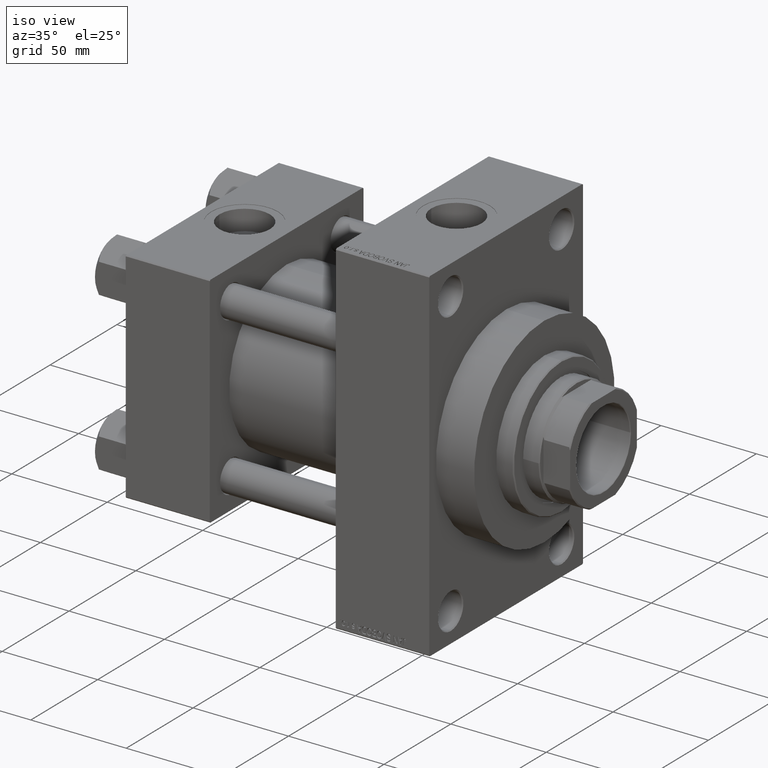
[diagram: clean part render]
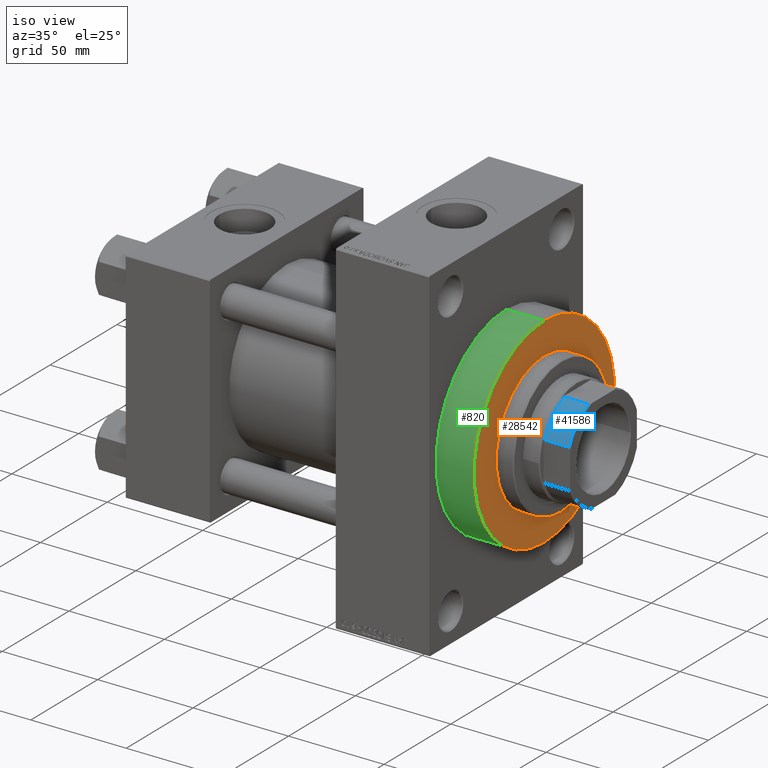
[diagram: same view with three faces highlighted in distinct colors, each labeled with its STEP entity id]
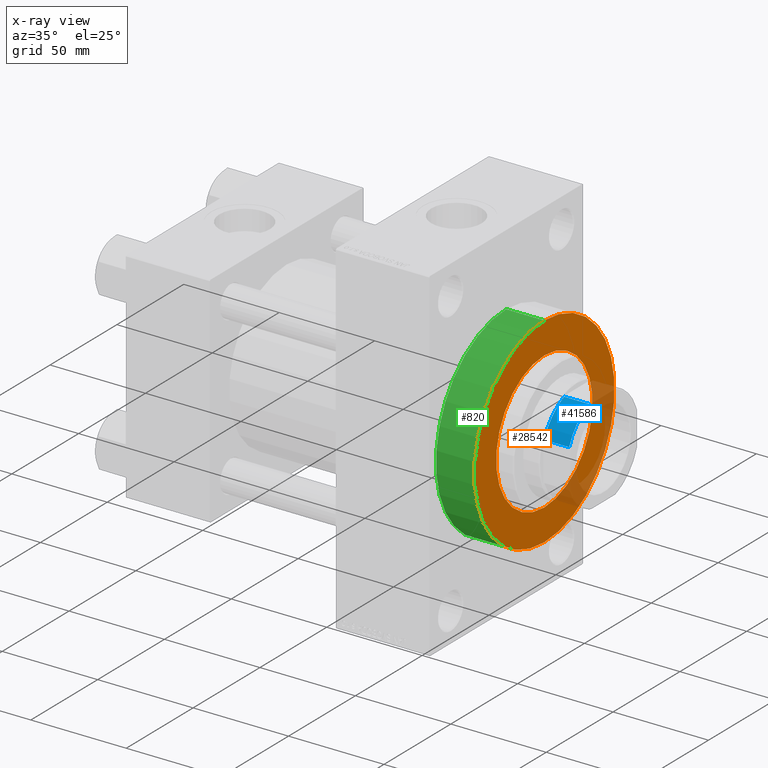
[diagram: x-ray of the same camera — body ghosted, the three highlighted faces saturated]
A machine part, iso view with three faces highlighted in distinct colors.
The next image is the same camera in x-ray (body ghosted, the three faces saturated) — at least one of them is partly hidden behind the body in this view.
Their STEP definitions:

[orange] entity #28542 — the highlighted planar face has unit normal (1, 0, 0).
#28 = CIRCLE ( 'NONE', #9287, 52.50000000000000000 ) ;
#251 = ORIENTED_EDGE ( 'NONE', *, *, #20173, .T. ) ;
#1074 = EDGE_LOOP ( 'NONE', ( #2925, #32901 ) ) ;
#1841 = CARTESIAN_POINT ( 'NONE',  ( 179.0000000000000000, 0.000000000000000000, 0.000000000000000000 ) ) ;
#2472 = CARTESIAN_POINT ( 'NONE',  ( 179.0000000000000000, 6.429395695523603956E-15, -52.50000000000000000 ) ) ;
#2503 = DIRECTION ( 'NONE',  ( 1.000000000000000000, 0.000000000000000000, 0.000000000000000000 ) ) ;
#2925 = ORIENTED_EDGE ( 'NONE', *, *, #42135, .F. ) ;
#3751 = CARTESIAN_POINT ( 'NONE',  ( 179.0000000000000000, 0.000000000000000000, 0.000000000000000000 ) ) ;
#6777 = EDGE_CURVE ( 'NONE', #33591, #23240, #35334, .T. ) ;
#8127 = DIRECTION ( 'NONE',  ( 0.000000000000000000, 0.000000000000000000, -1.000000000000000000 ) ) ;
#8806 = ORIENTED_EDGE ( 'NONE', *, *, #33356, .T. ) ;
#9287 = AXIS2_PLACEMENT_3D ( 'NONE', #22755, #2503, #45904 ) ;
#14816 = CIRCLE ( 'NONE', #21755, 36.00000000000000000 ) ;
#19880 = AXIS2_PLACEMENT_3D ( 'NONE', #3751, #44246, #25670 ) ;
#20173 = EDGE_CURVE ( 'NONE', #45961, #37296, #34922, .T. ) ;
#20682 = AXIS2_PLACEMENT_3D ( 'NONE', #1841, #45707, #35324 ) ;
#21755 = AXIS2_PLACEMENT_3D ( 'NONE', #29595, #29831, #8127 ) ;
#22755 = CARTESIAN_POINT ( 'NONE',  ( 179.0000000000000000, 0.000000000000000000, 0.000000000000000000 ) ) ;
#23136 = CARTESIAN_POINT ( 'NONE',  ( 179.0000000000000000, 0.000000000000000000, 52.50000000000000000 ) ) ;
#23240 = VERTEX_POINT ( 'NONE', #30875 ) ;
#25670 = DIRECTION ( 'NONE',  ( 0.000000000000000000, 0.000000000000000000, -1.000000000000000000 ) ) ;
#27114 = DIRECTION ( 'NONE',  ( 0.000000000000000000, 0.000000000000000000, -1.000000000000000000 ) ) ;
#28542 = ADVANCED_FACE ( 'NONE', ( #33406, #44003 ), #36782, .T. ) ;
#28741 = AXIS2_PLACEMENT_3D ( 'NONE', #46390, #31212, #27114 ) ;
#29595 = CARTESIAN_POINT ( 'NONE',  ( 179.0000000000000000, 0.000000000000000000, 0.000000000000000000 ) ) ;
#29831 = DIRECTION ( 'NONE',  ( 1.000000000000000000, 0.000000000000000000, 0.000000000000000000 ) ) ;
#30875 = CARTESIAN_POINT ( 'NONE',  ( 179.0000000000000000, 0.000000000000000000, -36.00000000000000000 ) ) ;
#31212 = DIRECTION ( 'NONE',  ( 1.000000000000000000, 0.000000000000000000, 0.000000000000000000 ) ) ;
#31478 = EDGE_LOOP ( 'NONE', ( #8806, #251 ) ) ;
#31848 = CARTESIAN_POINT ( 'NONE',  ( 179.0000000000000000, 4.408728476930470856E-15, 36.00000000000000000 ) ) ;
#32901 = ORIENTED_EDGE ( 'NONE', *, *, #6777, .F. ) ;
#33356 = EDGE_CURVE ( 'NONE', #37296, #45961, #28, .T. ) ;
#33406 = FACE_BOUND ( 'NONE', #1074, .T. ) ;
#33591 = VERTEX_POINT ( 'NONE', #31848 ) ;
#34922 = CIRCLE ( 'NONE', #28741, 52.50000000000000000 ) ;
#35324 = DIRECTION ( 'NONE',  ( 0.000000000000000000, 0.000000000000000000, -1.000000000000000000 ) ) ;
#35334 = CIRCLE ( 'NONE', #20682, 36.00000000000000000 ) ;
#36782 = PLANE ( 'NONE',  #19880 ) ;
#37296 = VERTEX_POINT ( 'NONE', #23136 ) ;
#42135 = EDGE_CURVE ( 'NONE', #23240, #33591, #14816, .T. ) ;
#44003 = FACE_OUTER_BOUND ( 'NONE', #31478, .T. ) ;
#44246 = DIRECTION ( 'NONE',  ( 1.000000000000000000, 0.000000000000000000, 0.000000000000000000 ) ) ;
#45707 = DIRECTION ( 'NONE',  ( 1.000000000000000000, 0.000000000000000000, 0.000000000000000000 ) ) ;
#45904 = DIRECTION ( 'NONE',  ( 0.000000000000000000, 0.000000000000000000, -1.000000000000000000 ) ) ;
#45961 = VERTEX_POINT ( 'NONE', #2472 ) ;
#46390 = CARTESIAN_POINT ( 'NONE',  ( 179.0000000000000000, 0.000000000000000000, 0.000000000000000000 ) ) ;

[blue] entity #41586 — the highlighted cylindrical surface (partial cylindrical patch) has radius 27 mm, axis along (1, 0, 0).
#841 = FACE_OUTER_BOUND ( 'NONE', #45410, .T. ) ;
#3537 = CARTESIAN_POINT ( 'NONE',  ( 10.19803902718556188, -25.00000000000000355, -0.001000000000001000089 ) ) ;
#3986 = ORIENTED_EDGE ( 'NONE', *, *, #31487, .T. ) ;
#6320 = AXIS2_PLACEMENT_3D ( 'NONE', #20101, #30490, #12868 ) ;
#6337 = AXIS2_PLACEMENT_3D ( 'NONE', #30355, #11313, #45295 ) ;
#11313 = DIRECTION ( 'NONE',  ( -0.000000000000000000, -0.000000000000000000, 1.000000000000000000 ) ) ;
#11334 = VERTEX_POINT ( 'NONE', #15329 ) ;
#12868 = DIRECTION ( 'NONE',  ( 1.000000000000000000, 0.000000000000000000, 0.000000000000000000 ) ) ;
#15329 = CARTESIAN_POINT ( 'NONE',  ( 24.99999999999999645, -10.19803902718558675, 165.5000000000000000 ) ) ;
#16933 = VERTEX_POINT ( 'NONE', #26910 ) ;
#17425 = CARTESIAN_POINT ( 'NONE',  ( 0.000000000000000000, 0.000000000000000000, 165.5000000000000000 ) ) ;
#17982 = EDGE_CURVE ( 'NONE', #16933, #32902, #29423, .T. ) ;
#18700 = DIRECTION ( 'NONE',  ( -0.000000000000000000, -0.000000000000000000, 1.000000000000000000 ) ) ;
#19971 = CIRCLE ( 'NONE', #41545, 27.00000000000000355 ) ;
#20064 = ORIENTED_EDGE ( 'NONE', *, *, #17982, .T. ) ;
#20101 = CARTESIAN_POINT ( 'NONE',  ( 0.000000000000000000, 0.000000000000000000, -0.001000000000001000089 ) ) ;
#21503 = DIRECTION ( 'NONE',  ( -0.000000000000000000, -0.000000000000000000, -1.000000000000000000 ) ) ;
#22661 = EDGE_CURVE ( 'NONE', #16933, #46143, #36573, .T. ) ;
#24180 = DIRECTION ( 'NONE',  ( 1.000000000000000000, 0.000000000000000000, 0.000000000000000000 ) ) ;
#25471 = ORIENTED_EDGE ( 'NONE', *, *, #35154, .T. ) ;
#26560 = ORIENTED_EDGE ( 'NONE', *, *, #22661, .F. ) ;
#26910 = CARTESIAN_POINT ( 'NONE',  ( 10.19803902718556188, -25.00000000000000355, 152.5000000000000284 ) ) ;
#29423 = CIRCLE ( 'NONE', #6337, 27.00000000000000355 ) ;
#30291 = LINE ( 'NONE', #37790, #45396 ) ;
#30355 = CARTESIAN_POINT ( 'NONE',  ( 0.000000000000000000, 0.000000000000000000, 152.5000000000000284 ) ) ;
#30490 = DIRECTION ( 'NONE',  ( -0.000000000000000000, -0.000000000000000000, 1.000000000000000000 ) ) ;
#31487 = EDGE_CURVE ( 'NONE', #32902, #11334, #30291, .T. ) ;
#32902 = VERTEX_POINT ( 'NONE', #41402 ) ;
#35154 = EDGE_CURVE ( 'NONE', #11334, #46143, #19971, .T. ) ;
#36573 = LINE ( 'NONE', #3537, #39594 ) ;
#37790 = CARTESIAN_POINT ( 'NONE',  ( 24.99999999999999645, -10.19803902718558675, -0.001000000000001000089 ) ) ;
#37984 = CYLINDRICAL_SURFACE ( 'NONE', #6320, 27.00000000000000355 ) ;
#39594 = VECTOR ( 'NONE', #18700, 1000.000000000000000 ) ;
#41402 = CARTESIAN_POINT ( 'NONE',  ( 24.99999999999999645, -10.19803902718558675, 152.5000000000000284 ) ) ;
#41545 = AXIS2_PLACEMENT_3D ( 'NONE', #17425, #21503, #24180 ) ;
#41586 = ADVANCED_FACE ( 'NONE', ( #841 ), #37984, .T. ) ;
#41672 = CARTESIAN_POINT ( 'NONE',  ( 10.19803902718556188, -25.00000000000000355, 165.5000000000000000 ) ) ;
#45295 = DIRECTION ( 'NONE',  ( -1.000000000000000000, 0.000000000000000000, 0.000000000000000000 ) ) ;
#45396 = VECTOR ( 'NONE', #45726, 1000.000000000000000 ) ;
#45410 = EDGE_LOOP ( 'NONE', ( #3986, #25471, #26560, #20064 ) ) ;
#45726 = DIRECTION ( 'NONE',  ( -0.000000000000000000, -0.000000000000000000, 1.000000000000000000 ) ) ;
#46143 = VERTEX_POINT ( 'NONE', #41672 ) ;

[green] entity #820 — the highlighted cylindrical surface (partial cylindrical patch) has radius 52.5 mm, axis along (-1, -0, -0).
#19 = CARTESIAN_POINT ( 'NONE',  ( 179.0000000000000000, 6.429395695523603956E-15, -52.50000000000000000 ) ) ;
#28 = CIRCLE ( 'NONE', #9287, 52.50000000000000000 ) ;
#384 = VERTEX_POINT ( 'NONE', #5719 ) ;
#820 = ADVANCED_FACE ( 'NONE', ( #28298 ), #43016, .T. ) ;
#2472 = CARTESIAN_POINT ( 'NONE',  ( 179.0000000000000000, 6.429395695523603956E-15, -52.50000000000000000 ) ) ;
#2503 = DIRECTION ( 'NONE',  ( 1.000000000000000000, 0.000000000000000000, 0.000000000000000000 ) ) ;
#2519 = CARTESIAN_POINT ( 'NONE',  ( 159.0000000000000000, 0.000000000000000000, 0.000000000000000000 ) ) ;
#2897 = CARTESIAN_POINT ( 'NONE',  ( 179.0000000000000000, 0.000000000000000000, 52.50000000000000000 ) ) ;
#3641 = LINE ( 'NONE', #19, #10043 ) ;
#5719 = CARTESIAN_POINT ( 'NONE',  ( 159.0000000000000000, 0.000000000000000000, 52.50000000000000000 ) ) ;
#6355 = DIRECTION ( 'NONE',  ( 0.000000000000000000, 0.000000000000000000, -1.000000000000000000 ) ) ;
#8665 = CIRCLE ( 'NONE', #31013, 52.50000000000000000 ) ;
#9287 = AXIS2_PLACEMENT_3D ( 'NONE', #22755, #2503, #45904 ) ;
#9978 = DIRECTION ( 'NONE',  ( -1.000000000000000000, -0.000000000000000000, -0.000000000000000000 ) ) ;
#10043 = VECTOR ( 'NONE', #29671, 1000.000000000000000 ) ;
#10128 = LINE ( 'NONE', #2897, #14561 ) ;
#13396 = ORIENTED_EDGE ( 'NONE', *, *, #42713, .T. ) ;
#14065 = CARTESIAN_POINT ( 'NONE',  ( 179.0000000000000000, 0.000000000000000000, 0.000000000000000000 ) ) ;
#14561 = VECTOR ( 'NONE', #28439, 1000.000000000000000 ) ;
#19902 = ORIENTED_EDGE ( 'NONE', *, *, #37181, .F. ) ;
#22755 = CARTESIAN_POINT ( 'NONE',  ( 179.0000000000000000, 0.000000000000000000, 0.000000000000000000 ) ) ;
#22902 = ORIENTED_EDGE ( 'NONE', *, *, #31024, .T. ) ;
#23136 = CARTESIAN_POINT ( 'NONE',  ( 179.0000000000000000, 0.000000000000000000, 52.50000000000000000 ) ) ;
#24669 = DIRECTION ( 'NONE',  ( 0.000000000000000000, 0.000000000000000000, 1.000000000000000000 ) ) ;
#26834 = EDGE_LOOP ( 'NONE', ( #19902, #39247, #22902, #13396 ) ) ;
#28298 = FACE_OUTER_BOUND ( 'NONE', #26834, .T. ) ;
#28439 = DIRECTION ( 'NONE',  ( -1.000000000000000000, -0.000000000000000000, -0.000000000000000000 ) ) ;
#29671 = DIRECTION ( 'NONE',  ( -1.000000000000000000, -0.000000000000000000, -0.000000000000000000 ) ) ;
#31013 = AXIS2_PLACEMENT_3D ( 'NONE', #2519, #32158, #6355 ) ;
#31024 = EDGE_CURVE ( 'NONE', #37296, #384, #10128, .T. ) ;
#31614 = CARTESIAN_POINT ( 'NONE',  ( 159.0000000000000000, 6.429395695523603956E-15, -52.50000000000000000 ) ) ;
#32158 = DIRECTION ( 'NONE',  ( 1.000000000000000000, 0.000000000000000000, 0.000000000000000000 ) ) ;
#33356 = EDGE_CURVE ( 'NONE', #37296, #45961, #28, .T. ) ;
#36357 = VERTEX_POINT ( 'NONE', #31614 ) ;
#37181 = EDGE_CURVE ( 'NONE', #45961, #36357, #3641, .T. ) ;
#37296 = VERTEX_POINT ( 'NONE', #23136 ) ;
#39247 = ORIENTED_EDGE ( 'NONE', *, *, #33356, .F. ) ;
#42713 = EDGE_CURVE ( 'NONE', #384, #36357, #8665, .T. ) ;
#43016 = CYLINDRICAL_SURFACE ( 'NONE', #43614, 52.50000000000000000 ) ;
#43614 = AXIS2_PLACEMENT_3D ( 'NONE', #14065, #9978, #24669 ) ;
#45904 = DIRECTION ( 'NONE',  ( 0.000000000000000000, 0.000000000000000000, -1.000000000000000000 ) ) ;
#45961 = VERTEX_POINT ( 'NONE', #2472 ) ;